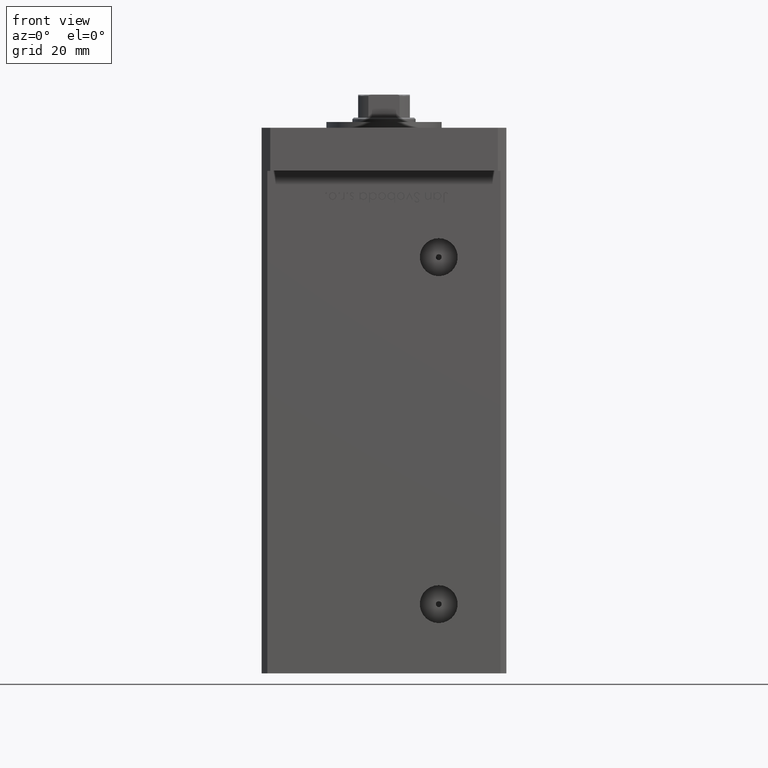
[diagram: clean part render]
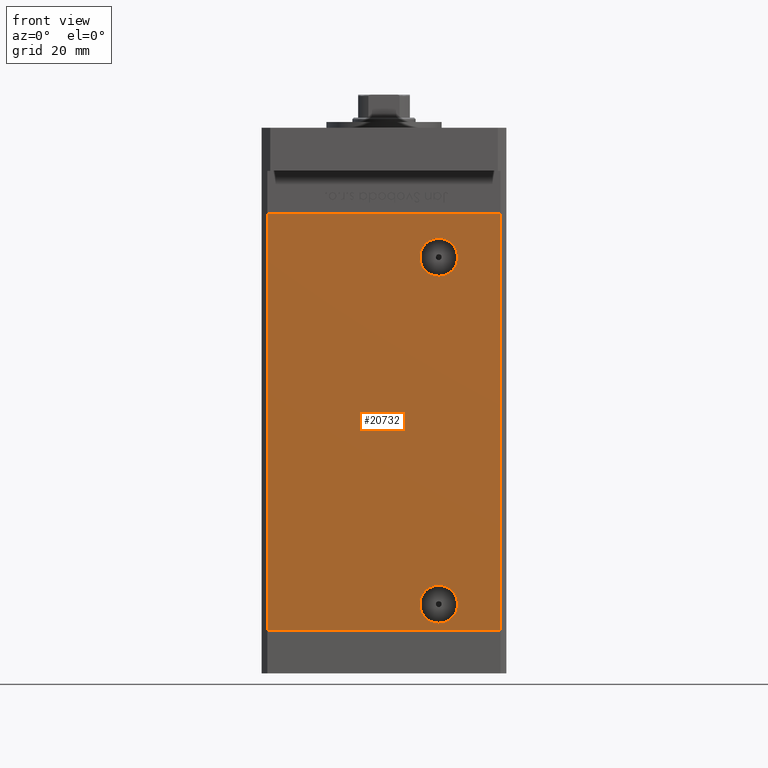
[diagram: same view with one face highlighted and labeled with its STEP entity id]
A machine part, front view. The second image highlights one B-rep face of the part: STEP entity #20732.
In plain terms, the highlighted planar face has unit normal (0, 1, 0).
Its self-contained STEP definition (entity closure, byte-faithful):
#181 = ORIENTED_EDGE ( 'NONE', *, *, #28957, .T. ) ;
#1149 = CARTESIAN_POINT ( 'NONE',  ( 18.99999999999998934, -37.50000000000000711, 9.000000000000007105 ) ) ;
#2149 = VECTOR ( 'NONE', #3564, 1000.000000000000000 ) ;
#3139 = DIRECTION ( 'NONE',  ( 0.000000000000000000, 0.000000000000000000, -1.000000000000000000 ) ) ;
#3481 = ORIENTED_EDGE ( 'NONE', *, *, #7150, .F. ) ;
#3564 = DIRECTION ( 'NONE',  ( -0.000000000000000000, -0.000000000000000000, -1.000000000000000000 ) ) ;
#4324 = DIRECTION ( 'NONE',  ( -0.000000000000000000, -0.000000000000000000, -1.000000000000000000 ) ) ;
#4973 = EDGE_LOOP ( 'NONE', ( #23300, #23827 ) ) ;
#5438 = CIRCLE ( 'NONE', #41799, 6.579999999999988525 ) ;
#6047 = DIRECTION ( 'NONE',  ( -0.000000000000000000, 1.000000000000000000, -0.000000000000000000 ) ) ;
#6207 = FACE_OUTER_BOUND ( 'NONE', #32962, .T. ) ;
#7150 = EDGE_CURVE ( 'NONE', #37063, #15459, #46153, .T. ) ;
#7887 = EDGE_CURVE ( 'NONE', #23397, #25018, #35025, .T. ) ;
#8708 = VERTEX_POINT ( 'NONE', #46879 ) ;
#8852 = ORIENTED_EDGE ( 'NONE', *, *, #7887, .T. ) ;
#11265 = LINE ( 'NONE', #53032, #40079 ) ;
#11525 = EDGE_LOOP ( 'NONE', ( #8852, #30796 ) ) ;
#11966 = AXIS2_PLACEMENT_3D ( 'NONE', #1149, #17681, #34245 ) ;
#13537 = CARTESIAN_POINT ( 'NONE',  ( -40.49999999999998579, -37.50000000000000711, 144.5000000000000000 ) ) ;
#14441 = DIRECTION ( 'NONE',  ( 0.000000000000000000, 0.000000000000000000, -1.000000000000000000 ) ) ;
#15369 = DIRECTION ( 'NONE',  ( 0.000000000000000000, -1.000000000000000000, 0.000000000000000000 ) ) ;
#15459 = VERTEX_POINT ( 'NONE', #32562 ) ;
#16288 = CARTESIAN_POINT ( 'NONE',  ( 18.99999999999997513, -37.50000000000000711, 122.9200000000000159 ) ) ;
#17114 = VERTEX_POINT ( 'NONE', #44502 ) ;
#17681 = DIRECTION ( 'NONE',  ( 0.000000000000000000, -1.000000000000000000, 0.000000000000000000 ) ) ;
#17716 = VERTEX_POINT ( 'NONE', #34534 ) ;
#18139 = FACE_BOUND ( 'NONE', #11525, .T. ) ;
#18820 = AXIS2_PLACEMENT_3D ( 'NONE', #19722, #15369, #40860 ) ;
#19236 = AXIS2_PLACEMENT_3D ( 'NONE', #13537, #39031, #22245 ) ;
#19722 = CARTESIAN_POINT ( 'NONE',  ( 18.99999999999998934, -37.50000000000000711, 9.000000000000007105 ) ) ;
#20370 = LINE ( 'NONE', #23934, #2149 ) ;
#20732 = ADVANCED_FACE ( 'NONE', ( #26314, #6207, #18139 ), #30628, .F. ) ;
#21971 = EDGE_CURVE ( 'NONE', #43063, #17114, #11265, .T. ) ;
#21984 = VECTOR ( 'NONE', #30147, 1000.000000000000000 ) ;
#22245 = DIRECTION ( 'NONE',  ( 0.000000000000000000, -0.000000000000000000, 1.000000000000000000 ) ) ;
#22758 = CARTESIAN_POINT ( 'NONE',  ( 18.99999999999997513, -37.50000000000000711, 136.0800000000000125 ) ) ;
#23300 = ORIENTED_EDGE ( 'NONE', *, *, #42361, .F. ) ;
#23397 = VERTEX_POINT ( 'NONE', #16288 ) ;
#23827 = ORIENTED_EDGE ( 'NONE', *, *, #41741, .F. ) ;
#23934 = CARTESIAN_POINT ( 'NONE',  ( -40.49999999999998579, -37.50000000000000711, 144.5000000000000000 ) ) ;
#24306 = EDGE_CURVE ( 'NONE', #25018, #23397, #5438, .T. ) ;
#25018 = VERTEX_POINT ( 'NONE', #22758 ) ;
#26314 = FACE_BOUND ( 'NONE', #4973, .T. ) ;
#26670 = CIRCLE ( 'NONE', #18820, 6.579999999999998295 ) ;
#28957 = EDGE_CURVE ( 'NONE', #37063, #43063, #20370, .T. ) ;
#29199 = ORIENTED_EDGE ( 'NONE', *, *, #21971, .T. ) ;
#29474 = CARTESIAN_POINT ( 'NONE',  ( -40.49999999999998579, -37.50000000000000711, 0.000000000000000000 ) ) ;
#30147 = DIRECTION ( 'NONE',  ( 1.000000000000000000, 0.000000000000000000, 0.000000000000000000 ) ) ;
#30628 = PLANE ( 'NONE',  #19236 ) ;
#30796 = ORIENTED_EDGE ( 'NONE', *, *, #24306, .T. ) ;
#30995 = CIRCLE ( 'NONE', #11966, 6.579999999999998295 ) ;
#31282 = CARTESIAN_POINT ( 'NONE',  ( 18.99999999999997513, -37.50000000000000711, 129.5000000000000000 ) ) ;
#32562 = CARTESIAN_POINT ( 'NONE',  ( 40.49999999999998579, -37.50000000000000711, 144.5000000000000000 ) ) ;
#32962 = EDGE_LOOP ( 'NONE', ( #29199, #38993, #3481, #181 ) ) ;
#34245 = DIRECTION ( 'NONE',  ( 0.000000000000000000, 0.000000000000000000, -1.000000000000000000 ) ) ;
#34534 = CARTESIAN_POINT ( 'NONE',  ( 18.99999999999998934, -37.50000000000000711, 15.58000000000000718 ) ) ;
#35025 = CIRCLE ( 'NONE', #35879, 6.579999999999988525 ) ;
#35879 = AXIS2_PLACEMENT_3D ( 'NONE', #48685, #40294, #3139 ) ;
#37063 = VERTEX_POINT ( 'NONE', #40707 ) ;
#37949 = CARTESIAN_POINT ( 'NONE',  ( 40.49999999999998579, -37.50000000000000711, 144.5000000000000000 ) ) ;
#38993 = ORIENTED_EDGE ( 'NONE', *, *, #43466, .F. ) ;
#39031 = DIRECTION ( 'NONE',  ( 0.000000000000000000, 1.000000000000000000, 0.000000000000000000 ) ) ;
#40079 = VECTOR ( 'NONE', #45411, 1000.000000000000000 ) ;
#40294 = DIRECTION ( 'NONE',  ( -0.000000000000000000, 1.000000000000000000, -0.000000000000000000 ) ) ;
#40707 = CARTESIAN_POINT ( 'NONE',  ( -40.49999999999998579, -37.50000000000000711, 144.5000000000000000 ) ) ;
#40860 = DIRECTION ( 'NONE',  ( 0.000000000000000000, 0.000000000000000000, -1.000000000000000000 ) ) ;
#41741 = EDGE_CURVE ( 'NONE', #17716, #8708, #26670, .T. ) ;
#41799 = AXIS2_PLACEMENT_3D ( 'NONE', #31282, #6047, #14441 ) ;
#42361 = EDGE_CURVE ( 'NONE', #8708, #17716, #30995, .T. ) ;
#43063 = VERTEX_POINT ( 'NONE', #29474 ) ;
#43466 = EDGE_CURVE ( 'NONE', #15459, #17114, #45567, .T. ) ;
#44502 = CARTESIAN_POINT ( 'NONE',  ( 40.49999999999998579, -37.50000000000000711, 0.000000000000000000 ) ) ;
#45411 = DIRECTION ( 'NONE',  ( 1.000000000000000000, 0.000000000000000000, 0.000000000000000000 ) ) ;
#45567 = LINE ( 'NONE', #37949, #51834 ) ;
#46153 = LINE ( 'NONE', #46681, #21984 ) ;
#46681 = CARTESIAN_POINT ( 'NONE',  ( -40.49999999999998579, -37.50000000000000711, 144.5000000000000000 ) ) ;
#46879 = CARTESIAN_POINT ( 'NONE',  ( 18.99999999999998934, -37.50000000000000711, 2.420000000000009699 ) ) ;
#48685 = CARTESIAN_POINT ( 'NONE',  ( 18.99999999999997513, -37.50000000000000711, 129.5000000000000000 ) ) ;
#51834 = VECTOR ( 'NONE', #4324, 1000.000000000000000 ) ;
#53032 = CARTESIAN_POINT ( 'NONE',  ( -40.49999999999998579, -37.50000000000000711, 0.000000000000000000 ) ) ;